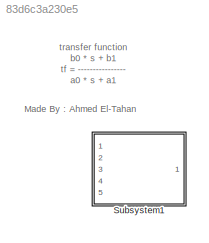
MODEL slx_83d6c3a230e5
KIND model
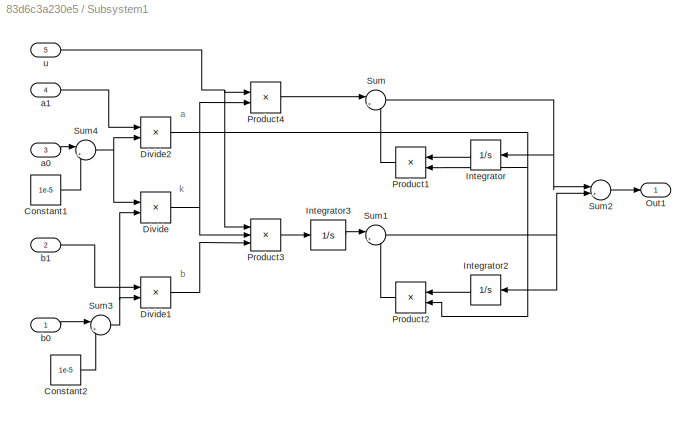
BLOCK [SubSystem] Subsystem1
  FunctionWithSeparateData = off
  MaskHideContents = off
  MinAlgLoopOccurrences = off
  Opaque = off
  Ports = [5, 1]
  PropExecContextOutsideSubsystem = off
  RTWSystemCode = Auto
  RequestExecContextInheritance = off
BLOCK [Constant] Subsystem1/Constant1
  Value = 1e-5
BLOCK [Constant] Subsystem1/Constant2
  Value = 1e-5
BLOCK [Product] Subsystem1/Divide
  InputSameDT = off
  Inputs = /*
  OutDataTypeStr = Inherit: Inherit via internal rule
  Ports = [2, 1]
  RndMeth = Floor
  SaturateOnIntegerOverflow = off
BLOCK [Product] Subsystem1/Divide1
  InputSameDT = off
  Inputs = */
  OutDataTypeStr = Inherit: Inherit via internal rule
  Ports = [2, 1]
  RndMeth = Floor
  SaturateOnIntegerOverflow = off
BLOCK [Product] Subsystem1/Divide2
  InputSameDT = off
  Inputs = */
  OutDataTypeStr = Inherit: Inherit via internal rule
  Ports = [2, 1]
  RndMeth = Floor
  SaturateOnIntegerOverflow = off
BLOCK [Integrator] Subsystem1/Integrator
  Ports = [1, 1]
BLOCK [Integrator] Subsystem1/Integrator2
  Ports = [1, 1]
BLOCK [Integrator] Subsystem1/Integrator3
  Ports = [1, 1]
BLOCK [Outport] Subsystem1/Out1
  IconDisplay = Port number
BLOCK [Product] Subsystem1/Product1
  InputSameDT = off
  OutDataTypeStr = Inherit: Inherit via internal rule
  Ports = [2, 1]
  RndMeth = Floor
  SaturateOnIntegerOverflow = off
BLOCK [Product] Subsystem1/Product2
  InputSameDT = off
  OutDataTypeStr = Inherit: Inherit via internal rule
  Ports = [2, 1]
  RndMeth = Floor
  SaturateOnIntegerOverflow = off
BLOCK [Product] Subsystem1/Product3
  InputSameDT = off
  Inputs = 3
  OutDataTypeStr = Inherit: Inherit via internal rule
  Ports = [3, 1]
  RndMeth = Floor
  SaturateOnIntegerOverflow = off
BLOCK [Product] Subsystem1/Product4
  InputSameDT = off
  OutDataTypeStr = Inherit: Inherit via internal rule
  Ports = [2, 1]
  RndMeth = Floor
  SaturateOnIntegerOverflow = off
BLOCK [Sum] Subsystem1/Sum
  IconShape = round
  InputSameDT = off
  Inputs = |+-
  OutDataTypeStr = Inherit: Inherit via internal rule
  Ports = [2, 1]
  SaturateOnIntegerOverflow = off
BLOCK [Sum] Subsystem1/Sum1
  IconShape = round
  InputSameDT = off
  Inputs = |+-
  OutDataTypeStr = Inherit: Inherit via internal rule
  Ports = [2, 1]
  SaturateOnIntegerOverflow = off
BLOCK [Sum] Subsystem1/Sum2
  IconShape = round
  InputSameDT = off
  Inputs = |++
  OutDataTypeStr = Inherit: Inherit via internal rule
  Ports = [2, 1]
  SaturateOnIntegerOverflow = off
BLOCK [Sum] Subsystem1/Sum3
  IconShape = round
  InputSameDT = off
  Inputs = |++
  OutDataTypeStr = Inherit: Inherit via internal rule
  Ports = [2, 1]
  SaturateOnIntegerOverflow = off
BLOCK [Sum] Subsystem1/Sum4
  IconShape = round
  InputSameDT = off
  Inputs = |++
  OutDataTypeStr = Inherit: Inherit via internal rule
  Ports = [2, 1]
  SaturateOnIntegerOverflow = off
BLOCK [Inport] Subsystem1/a0
  IconDisplay = Port number
  Port = 3
BLOCK [Inport] Subsystem1/a1
  IconDisplay = Port number
  Port = 4
BLOCK [Inport] Subsystem1/b0
  IconDisplay = Port number
BLOCK [Inport] Subsystem1/b1
  IconDisplay = Port number
  Port = 2
BLOCK [Inport] Subsystem1/u
  IconDisplay = Port number
  Port = 5
ANNOTATION (root): Made By : Ahmed El-Tahan
ANNOTATION (root): transfer function b0 * s + b1 tf = ---------------- a0 * s + a1
ANNOTATION Subsystem1: a
ANNOTATION Subsystem1: b
ANNOTATION Subsystem1: k
LINE Subsystem1/Constant1:1 -> Subsystem1/Sum4:2
LINE Subsystem1/Constant2:1 -> Subsystem1/Sum3:2
LINE Subsystem1/Divide1:1 -> Subsystem1/Product3:3
NET Subsystem1/Divide2:1 -> Subsystem1/Product1:2, Subsystem1/Product2:2
NET Subsystem1/Divide:1 -> Subsystem1/Product3:2, Subsystem1/Product4:2
LINE Subsystem1/Integrator2:1 -> Subsystem1/Product2:1
LINE Subsystem1/Integrator3:1 -> Subsystem1/Sum1:1
LINE Subsystem1/Integrator:1 -> Subsystem1/Product1:1
LINE Subsystem1/Product1:1 -> Subsystem1/Sum:2
LINE Subsystem1/Product2:1 -> Subsystem1/Sum1:2
LINE Subsystem1/Product3:1 -> Subsystem1/Integrator3:1
LINE Subsystem1/Product4:1 -> Subsystem1/Sum:1
NET Subsystem1/Sum1:1 -> Subsystem1/Integrator2:1, Subsystem1/Sum2:2
LINE Subsystem1/Sum2:1 -> Subsystem1/Out1:1
NET Subsystem1/Sum3:1 -> Subsystem1/Divide1:2, Subsystem1/Divide:2
NET Subsystem1/Sum4:1 -> Subsystem1/Divide2:2, Subsystem1/Divide:1
NET Subsystem1/Sum:1 -> Subsystem1/Integrator:1, Subsystem1/Sum2:1
LINE Subsystem1/a0:1 -> Subsystem1/Sum4:1
LINE Subsystem1/a1:1 -> Subsystem1/Divide2:1
LINE Subsystem1/b0:1 -> Subsystem1/Sum3:1
LINE Subsystem1/b1:1 -> Subsystem1/Divide1:1
NET Subsystem1/u:1 -> Subsystem1/Product3:1, Subsystem1/Product4:1
note: NET lines group one-source signal fan-out (src -> all destinations, sorted); 1:1 wires keep LINE
